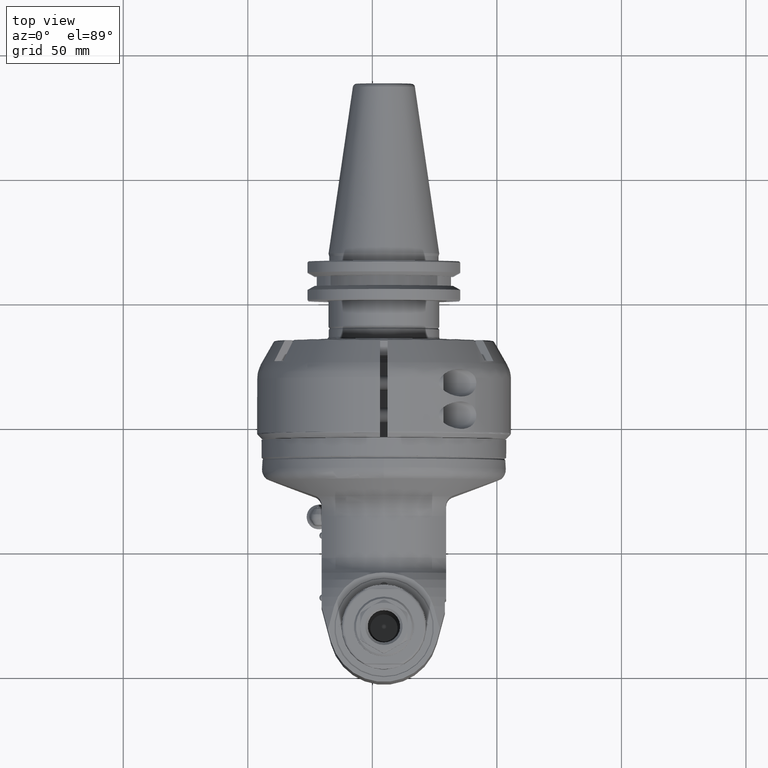
[diagram: clean part render]
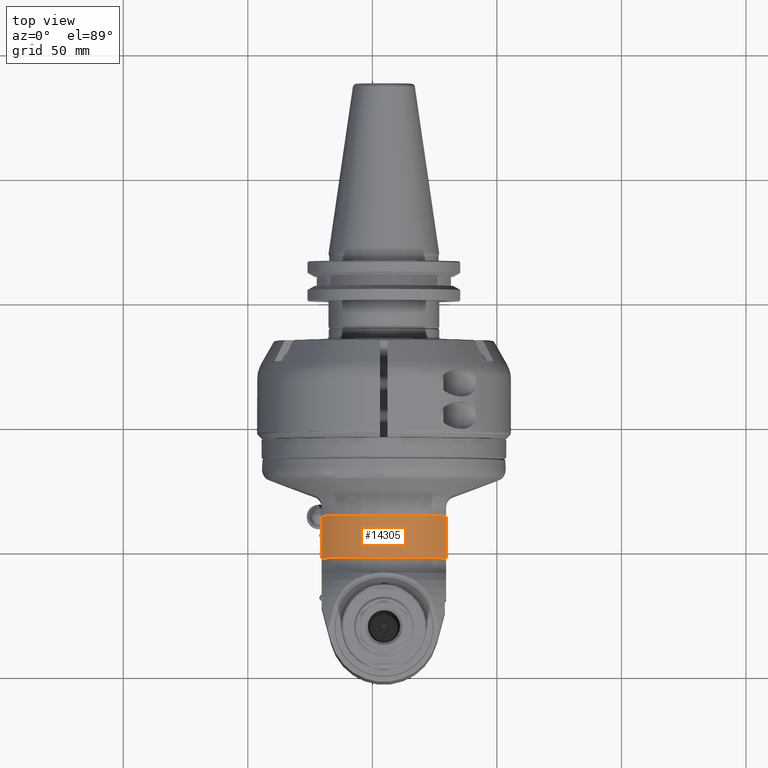
[diagram: same view with one face highlighted and labeled with its STEP entity id]
A machine part, top view. The second image highlights one B-rep face of the part: STEP entity #14305.
In plain terms, the highlighted cylindrical surface (partial cylindrical patch) has radius 30 mm, axis along (-0, 1, 0).
Its self-contained STEP definition (entity closure, byte-faithful):
#882=LINE('',#21805,#1862);
#940=LINE('',#22289,#1920);
#1862=VECTOR('',#17212,16.7720146362);
#1920=VECTOR('',#17532,16.7720146362);
#2836=CYLINDRICAL_SURFACE('',#15411,30.);
#3153=FACE_OUTER_BOUND('',#4094,.T.);
#4094=EDGE_LOOP('',(#9994,#9995,#9996,#9997));
#5130=CIRCLE('',#15412,30.);
#5131=CIRCLE('',#15413,30.);
#5919=VERTEX_POINT('',#21795);
#5920=VERTEX_POINT('',#21804);
#6033=VERTEX_POINT('',#22287);
#6034=VERTEX_POINT('',#22288);
#7388=EDGE_CURVE('',#5920,#5919,#882,.T.);
#7540=EDGE_CURVE('',#6033,#6034,#940,.T.);
#7568=EDGE_CURVE('',#6033,#5919,#5130,.T.);
#7569=EDGE_CURVE('',#5920,#6034,#5131,.T.);
#9994=ORIENTED_EDGE('',*,*,#7568,.F.);
#9995=ORIENTED_EDGE('',*,*,#7540,.T.);
#9996=ORIENTED_EDGE('',*,*,#7569,.F.);
#9997=ORIENTED_EDGE('',*,*,#7388,.T.);
#14305=ADVANCED_FACE('',(#3153),#2836,.T.);
#15411=AXIS2_PLACEMENT_3D('',#22409,#17555,#17556);
#15412=AXIS2_PLACEMENT_3D('',#22410,#17557,#17558);
#15413=AXIS2_PLACEMENT_3D('',#22411,#17559,#17560);
#17212=DIRECTION('',(-1.,0.,0.));
#17532=DIRECTION('',(1.,0.,0.));
#17555=DIRECTION('center_axis',(-1.,0.,0.));
#17556=DIRECTION('ref_axis',(0.,-1.,-1.22464679914735E-16));
#17557=DIRECTION('center_axis',(-1.,0.,0.));
#17558=DIRECTION('ref_axis',(0.,-1.,0.));
#17559=DIRECTION('center_axis',(1.,0.,0.));
#17560=DIRECTION('ref_axis',(0.,-1.,0.));
#21795=CARTESIAN_POINT('',(35.16580758197,-16.58312395178,25.));
#21804=CARTESIAN_POINT('',(51.93782221817,-16.58312395178,25.));
#21805=CARTESIAN_POINT('',(51.93782221817,-16.58312395178,25.));
#22287=CARTESIAN_POINT('',(35.16580758197,-16.58312395178,-25.));
#22288=CARTESIAN_POINT('',(51.93782221817,-16.58312395178,-25.));
#22289=CARTESIAN_POINT('',(35.16580758197,-16.58312395178,-25.));
#22409=CARTESIAN_POINT('Origin',(44.97446463088,0.,0.));
#22410=CARTESIAN_POINT('Origin',(35.16580758197,0.,0.));
#22411=CARTESIAN_POINT('Origin',(51.93782221817,0.,0.));